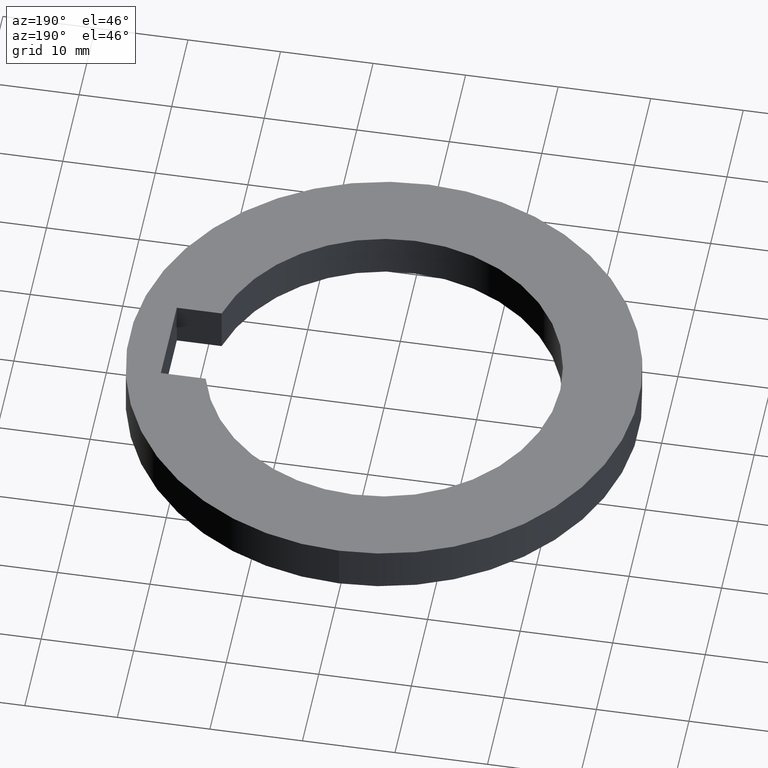
[diagram: clean part render]
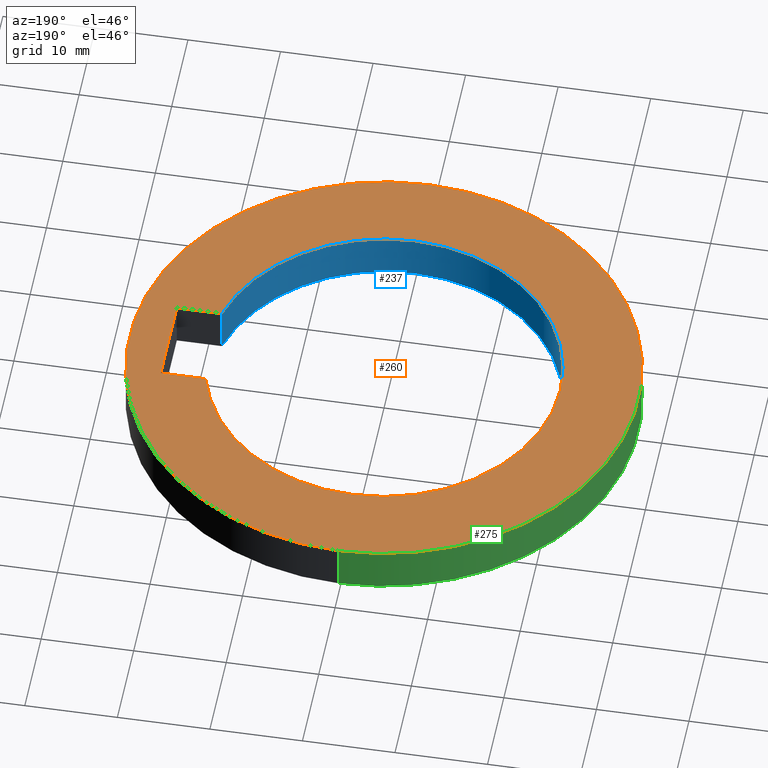
[diagram: same view with three faces highlighted in distinct colors, each labeled with its STEP entity id]
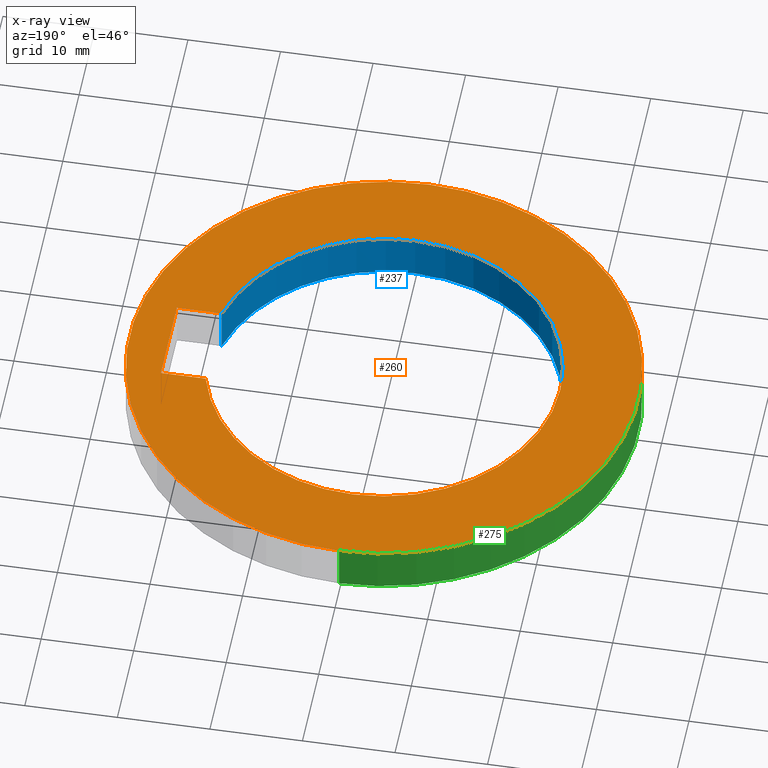
[diagram: x-ray of the same camera — body ghosted, the three highlighted faces saturated]
A machine part, auxiliary view with three faces highlighted in distinct colors.
The next image is the same camera in x-ray (body ghosted, the three faces saturated) — at least one of them is partly hidden behind the body in this view.
Their STEP definitions:

[orange] entity #260 — the highlighted planar face has unit normal (0, 0, -1).
#32=CARTESIAN_POINT('',(0.E0,1.227708416145E-14,0.E0));
#33=DIRECTION('',(0.E0,0.E0,-1.E0));
#34=DIRECTION('',(0.E0,-1.E0,0.E0));
#35=AXIS2_PLACEMENT_3D('',#32,#33,#34);
#40=CARTESIAN_POINT('',(0.E0,1.227708416145E-14,0.E0));
#41=DIRECTION('',(0.E0,0.E0,-1.E0));
#42=DIRECTION('',(0.E0,1.E0,0.E0));
#43=AXIS2_PLACEMENT_3D('',#40,#41,#42);
#48=CARTESIAN_POINT('',(0.E0,1.227708416145E-14,0.E0));
#49=DIRECTION('',(0.E0,0.E0,1.E0));
#50=DIRECTION('',(9.663534440302E-1,2.572178477690E-1,0.E0));
#51=AXIS2_PLACEMENT_3D('',#48,#49,#50);
#56=CARTESIAN_POINT('',(0.E0,1.227708416145E-14,0.E0));
#57=DIRECTION('',(0.E0,0.E0,1.E0));
#58=DIRECTION('',(0.E0,1.E0,0.E0));
#59=AXIS2_PLACEMENT_3D('',#56,#57,#58);
#64=CARTESIAN_POINT('',(0.E0,1.227708416145E-14,0.E0));
#65=DIRECTION('',(0.E0,0.E0,1.E0));
#66=DIRECTION('',(0.E0,-1.E0,0.E0));
#67=AXIS2_PLACEMENT_3D('',#64,#65,#66);
#154=DIRECTION('',(-1.E0,7.393892814845E-14,0.E0));
#155=VECTOR('',#154,4.840966891223E0);
#156=CARTESIAN_POINT('',(2.325E1,-4.9E0,0.E0));
#157=LINE('',#156,#155);
#168=DIRECTION('',(0.E0,-1.E0,0.E0));
#169=VECTOR('',#168,9.8E0);
#170=CARTESIAN_POINT('',(2.325E1,4.9E0,0.E0));
#171=LINE('',#170,#169);
#175=DIRECTION('',(1.E0,7.320504300554E-14,0.E0));
#176=VECTOR('',#175,4.840966891223E0);
#177=CARTESIAN_POINT('',(1.840903310878E1,4.9E0,0.E0));
#178=LINE('',#177,#176);
#182=CARTESIAN_POINT('',(0.E0,-1.905E1,0.E0));
#183=CARTESIAN_POINT('',(1.840903310878E1,-4.9E0,0.E0));
#184=VERTEX_POINT('',#182);
#185=VERTEX_POINT('',#183);
#186=CARTESIAN_POINT('',(-1.098651850827E-14,1.905E1,0.E0));
#187=VERTEX_POINT('',#186);
#188=CARTESIAN_POINT('',(1.840903310878E1,4.9E0,0.E0));
#189=VERTEX_POINT('',#188);
#198=CARTESIAN_POINT('',(0.E0,-2.75E1,0.E0));
#199=CARTESIAN_POINT('',(0.E0,2.75E1,0.E0));
#200=VERTEX_POINT('',#198);
#201=VERTEX_POINT('',#199);
#202=CARTESIAN_POINT('',(2.325E1,-4.9E0,0.E0));
#203=VERTEX_POINT('',#202);
#204=CARTESIAN_POINT('',(2.325E1,4.9E0,0.E0));
#205=VERTEX_POINT('',#204);
#238=CARTESIAN_POINT('',(0.E0,1.224646799147E-14,0.E0));
#239=DIRECTION('',(0.E0,0.E0,-1.E0));
#240=DIRECTION('',(0.E0,-1.E0,0.E0));
#241=AXIS2_PLACEMENT_3D('',#238,#239,#240);
#242=PLANE('',#241);
#244=ORIENTED_EDGE('',*,*,#243,.T.);
#246=ORIENTED_EDGE('',*,*,#245,.T.);
#247=EDGE_LOOP('',(#244,#246));
#248=FACE_OUTER_BOUND('',#247,.F.);
#250=ORIENTED_EDGE('',*,*,#249,.F.);
#252=ORIENTED_EDGE('',*,*,#251,.F.);
#254=ORIENTED_EDGE('',*,*,#253,.F.);
#255=ORIENTED_EDGE('',*,*,#223,.T.);
#256=ORIENTED_EDGE('',*,*,#221,.T.);
#257=ORIENTED_EDGE('',*,*,#219,.T.);
#258=EDGE_LOOP('',(#250,#252,#254,#255,#256,#257));
#259=FACE_BOUND('',#258,.F.);
#36=CIRCLE('',#35,2.75E1);
#44=CIRCLE('',#43,2.75E1);
#52=CIRCLE('',#51,1.905E1);
#60=CIRCLE('',#59,1.905E1);
#68=CIRCLE('',#67,1.905E1);
#219=EDGE_CURVE('',#184,#185,#68,.T.);
#221=EDGE_CURVE('',#187,#184,#60,.T.);
#223=EDGE_CURVE('',#189,#187,#52,.T.);
#243=EDGE_CURVE('',#200,#201,#36,.T.);
#245=EDGE_CURVE('',#201,#200,#44,.T.);
#249=EDGE_CURVE('',#203,#185,#157,.T.);
#251=EDGE_CURVE('',#205,#203,#171,.T.);
#253=EDGE_CURVE('',#189,#205,#178,.T.);
#260=ADVANCED_FACE('',(#248,#259),#242,.F.);

[blue] entity #237 — the highlighted cylindrical surface (partial cylindrical patch) has radius 19.05 mm, axis along (0, 0, -1).
#17=DIRECTION('',(0.E0,0.E0,-1.E0));
#18=VECTOR('',#17,5.E0);
#19=CARTESIAN_POINT('',(1.840903310878E1,4.9E0,0.E0));
#20=LINE('',#19,#18);
#25=DIRECTION('',(0.E0,0.E0,1.E0));
#26=VECTOR('',#25,5.E0);
#27=CARTESIAN_POINT('',(1.840903310878E1,-4.9E0,-5.E0));
#28=LINE('',#27,#26);
#48=CARTESIAN_POINT('',(0.E0,1.227708416145E-14,0.E0));
#49=DIRECTION('',(0.E0,0.E0,1.E0));
#50=DIRECTION('',(9.663534440302E-1,2.572178477690E-1,0.E0));
#51=AXIS2_PLACEMENT_3D('',#48,#49,#50);
#56=CARTESIAN_POINT('',(0.E0,1.227708416145E-14,0.E0));
#57=DIRECTION('',(0.E0,0.E0,1.E0));
#58=DIRECTION('',(0.E0,1.E0,0.E0));
#59=AXIS2_PLACEMENT_3D('',#56,#57,#58);
#64=CARTESIAN_POINT('',(0.E0,1.227708416145E-14,0.E0));
#65=DIRECTION('',(0.E0,0.E0,1.E0));
#66=DIRECTION('',(0.E0,-1.E0,0.E0));
#67=AXIS2_PLACEMENT_3D('',#64,#65,#66);
#109=CARTESIAN_POINT('',(0.E0,1.227708416145E-14,-5.E0));
#110=DIRECTION('',(0.E0,0.E0,-1.E0));
#111=DIRECTION('',(9.663534440302E-1,-2.572178477690E-1,0.E0));
#112=AXIS2_PLACEMENT_3D('',#109,#110,#111);
#117=CARTESIAN_POINT('',(0.E0,1.227708416145E-14,-5.E0));
#118=DIRECTION('',(0.E0,0.E0,-1.E0));
#119=DIRECTION('',(0.E0,-1.E0,0.E0));
#120=AXIS2_PLACEMENT_3D('',#117,#118,#119);
#125=CARTESIAN_POINT('',(0.E0,1.227708416145E-14,-5.E0));
#126=DIRECTION('',(0.E0,0.E0,-1.E0));
#127=DIRECTION('',(0.E0,1.E0,0.E0));
#128=AXIS2_PLACEMENT_3D('',#125,#126,#127);
#182=CARTESIAN_POINT('',(0.E0,-1.905E1,0.E0));
#183=CARTESIAN_POINT('',(1.840903310878E1,-4.9E0,0.E0));
#184=VERTEX_POINT('',#182);
#185=VERTEX_POINT('',#183);
#186=CARTESIAN_POINT('',(-1.098651850827E-14,1.905E1,0.E0));
#187=VERTEX_POINT('',#186);
#188=CARTESIAN_POINT('',(1.840903310878E1,4.9E0,0.E0));
#189=VERTEX_POINT('',#188);
#190=CARTESIAN_POINT('',(1.840903310878E1,4.9E0,-5.E0));
#191=VERTEX_POINT('',#190);
#192=CARTESIAN_POINT('',(0.E0,1.905E1,-5.E0));
#193=VERTEX_POINT('',#192);
#194=CARTESIAN_POINT('',(-2.469963939871E-14,-1.905E1,-5.E0));
#195=VERTEX_POINT('',#194);
#196=CARTESIAN_POINT('',(1.840903310878E1,-4.9E0,-5.E0));
#197=VERTEX_POINT('',#196);
#214=CARTESIAN_POINT('',(0.E0,1.227708416145E-14,2.5E-1));
#215=DIRECTION('',(0.E0,0.E0,-1.E0));
#216=DIRECTION('',(0.E0,-1.E0,0.E0));
#217=AXIS2_PLACEMENT_3D('',#214,#215,#216);
#218=CYLINDRICAL_SURFACE('',#217,1.905E1);
#220=ORIENTED_EDGE('',*,*,#219,.F.);
#222=ORIENTED_EDGE('',*,*,#221,.F.);
#224=ORIENTED_EDGE('',*,*,#223,.F.);
#226=ORIENTED_EDGE('',*,*,#225,.T.);
#228=ORIENTED_EDGE('',*,*,#227,.F.);
#230=ORIENTED_EDGE('',*,*,#229,.F.);
#232=ORIENTED_EDGE('',*,*,#231,.F.);
#234=ORIENTED_EDGE('',*,*,#233,.T.);
#235=EDGE_LOOP('',(#220,#222,#224,#226,#228,#230,#232,#234));
#236=FACE_OUTER_BOUND('',#235,.F.);
#52=CIRCLE('',#51,1.905E1);
#60=CIRCLE('',#59,1.905E1);
#68=CIRCLE('',#67,1.905E1);
#113=CIRCLE('',#112,1.905E1);
#121=CIRCLE('',#120,1.905E1);
#129=CIRCLE('',#128,1.905E1);
#219=EDGE_CURVE('',#184,#185,#68,.T.);
#221=EDGE_CURVE('',#187,#184,#60,.T.);
#223=EDGE_CURVE('',#189,#187,#52,.T.);
#225=EDGE_CURVE('',#189,#191,#20,.T.);
#227=EDGE_CURVE('',#193,#191,#129,.T.);
#229=EDGE_CURVE('',#195,#193,#121,.T.);
#231=EDGE_CURVE('',#197,#195,#113,.T.);
#233=EDGE_CURVE('',#197,#185,#28,.T.);
#237=ADVANCED_FACE('',(#236),#218,.F.);

[green] entity #275 — the highlighted cylindrical surface (partial cylindrical patch) has radius 27.5 mm, axis along (0, 0, -1).
#32=CARTESIAN_POINT('',(0.E0,1.227708416145E-14,0.E0));
#33=DIRECTION('',(0.E0,0.E0,-1.E0));
#34=DIRECTION('',(0.E0,-1.E0,0.E0));
#35=AXIS2_PLACEMENT_3D('',#32,#33,#34);
#72=DIRECTION('',(0.E0,0.E0,-1.E0));
#73=VECTOR('',#72,5.E0);
#74=CARTESIAN_POINT('',(0.E0,-2.75E1,0.E0));
#75=LINE('',#74,#73);
#79=DIRECTION('',(0.E0,0.E0,-1.E0));
#80=VECTOR('',#79,5.E0);
#81=CARTESIAN_POINT('',(0.E0,2.75E1,0.E0));
#82=LINE('',#81,#80);
#94=CARTESIAN_POINT('',(0.E0,1.227708416145E-14,-5.E0));
#95=DIRECTION('',(0.E0,0.E0,1.E0));
#96=DIRECTION('',(0.E0,1.E0,0.E0));
#97=AXIS2_PLACEMENT_3D('',#94,#95,#96);
#198=CARTESIAN_POINT('',(0.E0,-2.75E1,0.E0));
#199=CARTESIAN_POINT('',(0.E0,2.75E1,0.E0));
#200=VERTEX_POINT('',#198);
#201=VERTEX_POINT('',#199);
#206=CARTESIAN_POINT('',(0.E0,2.75E1,-5.E0));
#207=VERTEX_POINT('',#206);
#208=CARTESIAN_POINT('',(0.E0,-2.75E1,-5.E0));
#209=VERTEX_POINT('',#208);
#261=CARTESIAN_POINT('',(0.E0,1.227708416145E-14,2.5E-1));
#262=DIRECTION('',(0.E0,0.E0,-1.E0));
#263=DIRECTION('',(0.E0,-1.E0,0.E0));
#264=AXIS2_PLACEMENT_3D('',#261,#262,#263);
#265=CYLINDRICAL_SURFACE('',#264,2.75E1);
#267=ORIENTED_EDGE('',*,*,#266,.F.);
#268=ORIENTED_EDGE('',*,*,#243,.F.);
#270=ORIENTED_EDGE('',*,*,#269,.T.);
#272=ORIENTED_EDGE('',*,*,#271,.F.);
#273=EDGE_LOOP('',(#267,#268,#270,#272));
#274=FACE_OUTER_BOUND('',#273,.F.);
#36=CIRCLE('',#35,2.75E1);
#98=CIRCLE('',#97,2.75E1);
#243=EDGE_CURVE('',#200,#201,#36,.T.);
#266=EDGE_CURVE('',#201,#207,#82,.T.);
#269=EDGE_CURVE('',#200,#209,#75,.T.);
#271=EDGE_CURVE('',#207,#209,#98,.T.);
#275=ADVANCED_FACE('',(#274),#265,.T.);